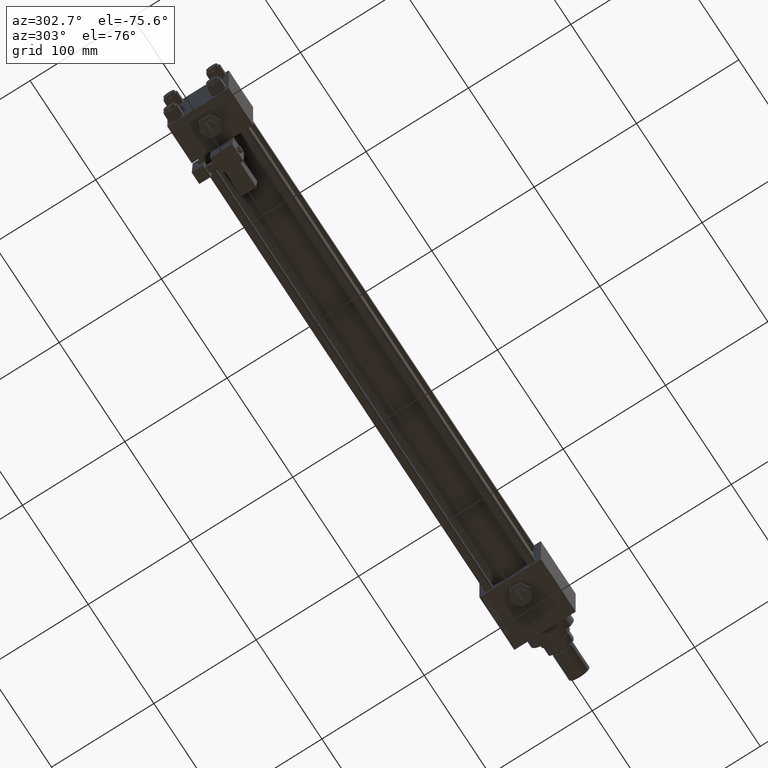
[diagram: clean part render]
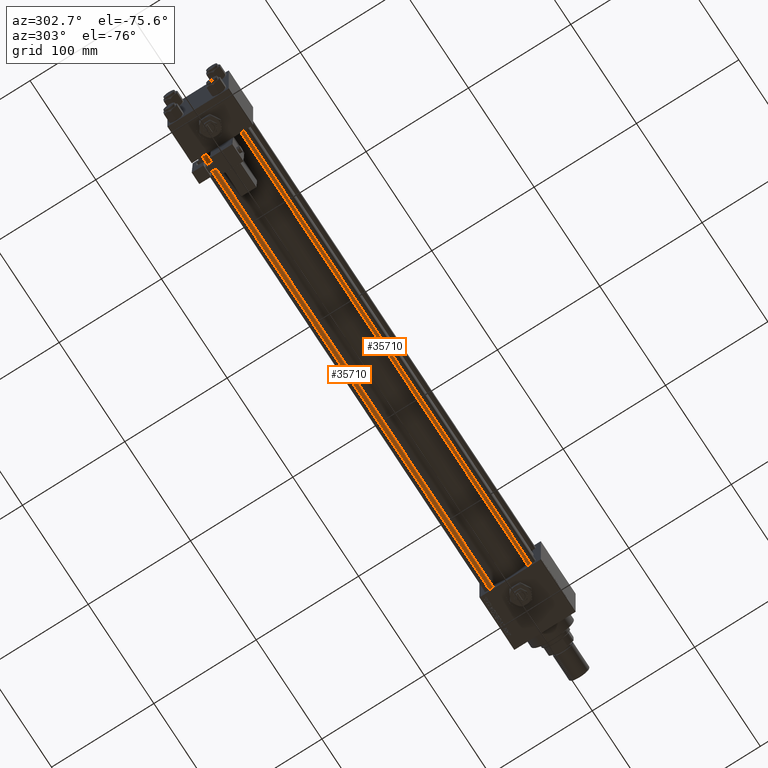
[diagram: same view with one multi-face feature highlighted, each face labeled with its STEP entity id]
A machine part, auxiliary view. The highlighted faces form ONE feature: a constant-radius fillet chain: 2 tangent blend faces with common blend radius 4 mm. The faces share edges in the B-rep.
Their STEP definitions:
[1] entity #35710 (Cylinder):
#1785 = DIRECTION ( 'NONE',  ( -0.000000000000000000, -0.000000000000000000, 1.000000000000000000 ) ) ;
#3587 = EDGE_CURVE ( 'NONE', #6752, #47997, #36639, .T. ) ;
#3990 = CARTESIAN_POINT ( 'NONE',  ( -4.000000000000000000, 0.000000000000000000, 501.4999999999999432 ) ) ;
#4006 = DIRECTION ( 'NONE',  ( -0.000000000000000000, -0.000000000000000000, -1.000000000000000000 ) ) ;
#5753 = CARTESIAN_POINT ( 'NONE',  ( 4.000000000000000000, 4.898587196589412829E-16, 502.0000000000000000 ) ) ;
#6752 = VERTEX_POINT ( 'NONE', #52958 ) ;
#6857 = ORIENTED_EDGE ( 'NONE', *, *, #20676, .T. ) ;
#7543 = AXIS2_PLACEMENT_3D ( 'NONE', #9276, #43176, #38997 ) ;
#9276 = CARTESIAN_POINT ( 'NONE',  ( 0.000000000000000000, 0.000000000000000000, 502.0000000000000000 ) ) ;
#9752 = VERTEX_POINT ( 'NONE', #53785 ) ;
#10744 = LINE ( 'NONE', #5753, #54184 ) ;
#12666 = AXIS2_PLACEMENT_3D ( 'NONE', #26717, #46730, #30088 ) ;
#14006 = EDGE_LOOP ( 'NONE', ( #34490, #51853, #20349, #6857 ) ) ;
#17753 = VECTOR ( 'NONE', #4006, 1000.000000000000000 ) ;
#20335 = EDGE_CURVE ( 'NONE', #47997, #9752, #42061, .T. ) ;
#20349 = ORIENTED_EDGE ( 'NONE', *, *, #20335, .T. ) ;
#20676 = EDGE_CURVE ( 'NONE', #9752, #23797, #23083, .T. ) ;
#22477 = EDGE_CURVE ( 'NONE', #6752, #23797, #10744, .T. ) ;
#22977 = DIRECTION ( 'NONE',  ( -0.000000000000000000, -0.000000000000000000, -1.000000000000000000 ) ) ;
#23083 = CIRCLE ( 'NONE', #37281, 4.000000000000000000 ) ;
#23715 = CARTESIAN_POINT ( 'NONE',  ( 0.000000000000000000, 0.000000000000000000, 0.4999999999999449329 ) ) ;
#23797 = VERTEX_POINT ( 'NONE', #23830 ) ;
#23830 = CARTESIAN_POINT ( 'NONE',  ( 4.000000000000000000, 4.898587196589412829E-16, 0.4999999999999449329 ) ) ;
#26486 = FACE_OUTER_BOUND ( 'NONE', #14006, .T. ) ;
#26717 = CARTESIAN_POINT ( 'NONE',  ( 0.000000000000000000, 0.000000000000000000, 501.4999999999999432 ) ) ;
#29284 = CARTESIAN_POINT ( 'NONE',  ( -4.000000000000000000, 0.000000000000000000, 502.0000000000000000 ) ) ;
#30088 = DIRECTION ( 'NONE',  ( 1.000000000000000000, 0.000000000000000000, 0.000000000000000000 ) ) ;
#34490 = ORIENTED_EDGE ( 'NONE', *, *, #22477, .F. ) ;
#35710 = ADVANCED_FACE ( 'NONE', ( #26486 ), #51213, .T. ) ;
#36493 = DIRECTION ( 'NONE',  ( 1.000000000000000000, 0.000000000000000000, 0.000000000000000000 ) ) ;
#36639 = CIRCLE ( 'NONE', #12666, 4.000000000000000000 ) ;
#37281 = AXIS2_PLACEMENT_3D ( 'NONE', #23715, #1785, #36493 ) ;
#38997 = DIRECTION ( 'NONE',  ( -1.000000000000000000, 0.000000000000000000, 0.000000000000000000 ) ) ;
#42061 = LINE ( 'NONE', #29284, #17753 ) ;
#43176 = DIRECTION ( 'NONE',  ( -0.000000000000000000, -0.000000000000000000, -1.000000000000000000 ) ) ;
#46730 = DIRECTION ( 'NONE',  ( 0.000000000000000000, 0.000000000000000000, -1.000000000000000000 ) ) ;
#47997 = VERTEX_POINT ( 'NONE', #3990 ) ;
#51213 = CYLINDRICAL_SURFACE ( 'NONE', #7543, 4.000000000000000000 ) ;
#51853 = ORIENTED_EDGE ( 'NONE', *, *, #3587, .T. ) ;
#52958 = CARTESIAN_POINT ( 'NONE',  ( 4.000000000000000000, 4.898587196589412829E-16, 501.4999999999999432 ) ) ;
#53785 = CARTESIAN_POINT ( 'NONE',  ( -4.000000000000000000, 0.000000000000000000, 0.4999999999999449329 ) ) ;
#54184 = VECTOR ( 'NONE', #22977, 1000.000000000000000 ) ;
[2] entity #35710 (Cylinder):
#1785 = DIRECTION ( 'NONE',  ( -0.000000000000000000, -0.000000000000000000, 1.000000000000000000 ) ) ;
#3587 = EDGE_CURVE ( 'NONE', #6752, #47997, #36639, .T. ) ;
#3990 = CARTESIAN_POINT ( 'NONE',  ( -4.000000000000000000, 0.000000000000000000, 501.4999999999999432 ) ) ;
#4006 = DIRECTION ( 'NONE',  ( -0.000000000000000000, -0.000000000000000000, -1.000000000000000000 ) ) ;
#5753 = CARTESIAN_POINT ( 'NONE',  ( 4.000000000000000000, 4.898587196589412829E-16, 502.0000000000000000 ) ) ;
#6752 = VERTEX_POINT ( 'NONE', #52958 ) ;
#6857 = ORIENTED_EDGE ( 'NONE', *, *, #20676, .T. ) ;
#7543 = AXIS2_PLACEMENT_3D ( 'NONE', #9276, #43176, #38997 ) ;
#9276 = CARTESIAN_POINT ( 'NONE',  ( 0.000000000000000000, 0.000000000000000000, 502.0000000000000000 ) ) ;
#9752 = VERTEX_POINT ( 'NONE', #53785 ) ;
#10744 = LINE ( 'NONE', #5753, #54184 ) ;
#12666 = AXIS2_PLACEMENT_3D ( 'NONE', #26717, #46730, #30088 ) ;
#14006 = EDGE_LOOP ( 'NONE', ( #34490, #51853, #20349, #6857 ) ) ;
#17753 = VECTOR ( 'NONE', #4006, 1000.000000000000000 ) ;
#20335 = EDGE_CURVE ( 'NONE', #47997, #9752, #42061, .T. ) ;
#20349 = ORIENTED_EDGE ( 'NONE', *, *, #20335, .T. ) ;
#20676 = EDGE_CURVE ( 'NONE', #9752, #23797, #23083, .T. ) ;
#22477 = EDGE_CURVE ( 'NONE', #6752, #23797, #10744, .T. ) ;
#22977 = DIRECTION ( 'NONE',  ( -0.000000000000000000, -0.000000000000000000, -1.000000000000000000 ) ) ;
#23083 = CIRCLE ( 'NONE', #37281, 4.000000000000000000 ) ;
#23715 = CARTESIAN_POINT ( 'NONE',  ( 0.000000000000000000, 0.000000000000000000, 0.4999999999999449329 ) ) ;
#23797 = VERTEX_POINT ( 'NONE', #23830 ) ;
#23830 = CARTESIAN_POINT ( 'NONE',  ( 4.000000000000000000, 4.898587196589412829E-16, 0.4999999999999449329 ) ) ;
#26486 = FACE_OUTER_BOUND ( 'NONE', #14006, .T. ) ;
#26717 = CARTESIAN_POINT ( 'NONE',  ( 0.000000000000000000, 0.000000000000000000, 501.4999999999999432 ) ) ;
#29284 = CARTESIAN_POINT ( 'NONE',  ( -4.000000000000000000, 0.000000000000000000, 502.0000000000000000 ) ) ;
#30088 = DIRECTION ( 'NONE',  ( 1.000000000000000000, 0.000000000000000000, 0.000000000000000000 ) ) ;
#34490 = ORIENTED_EDGE ( 'NONE', *, *, #22477, .F. ) ;
#35710 = ADVANCED_FACE ( 'NONE', ( #26486 ), #51213, .T. ) ;
#36493 = DIRECTION ( 'NONE',  ( 1.000000000000000000, 0.000000000000000000, 0.000000000000000000 ) ) ;
#36639 = CIRCLE ( 'NONE', #12666, 4.000000000000000000 ) ;
#37281 = AXIS2_PLACEMENT_3D ( 'NONE', #23715, #1785, #36493 ) ;
#38997 = DIRECTION ( 'NONE',  ( -1.000000000000000000, 0.000000000000000000, 0.000000000000000000 ) ) ;
#42061 = LINE ( 'NONE', #29284, #17753 ) ;
#43176 = DIRECTION ( 'NONE',  ( -0.000000000000000000, -0.000000000000000000, -1.000000000000000000 ) ) ;
#46730 = DIRECTION ( 'NONE',  ( 0.000000000000000000, 0.000000000000000000, -1.000000000000000000 ) ) ;
#47997 = VERTEX_POINT ( 'NONE', #3990 ) ;
#51213 = CYLINDRICAL_SURFACE ( 'NONE', #7543, 4.000000000000000000 ) ;
#51853 = ORIENTED_EDGE ( 'NONE', *, *, #3587, .T. ) ;
#52958 = CARTESIAN_POINT ( 'NONE',  ( 4.000000000000000000, 4.898587196589412829E-16, 501.4999999999999432 ) ) ;
#53785 = CARTESIAN_POINT ( 'NONE',  ( -4.000000000000000000, 0.000000000000000000, 0.4999999999999449329 ) ) ;
#54184 = VECTOR ( 'NONE', #22977, 1000.000000000000000 ) ;